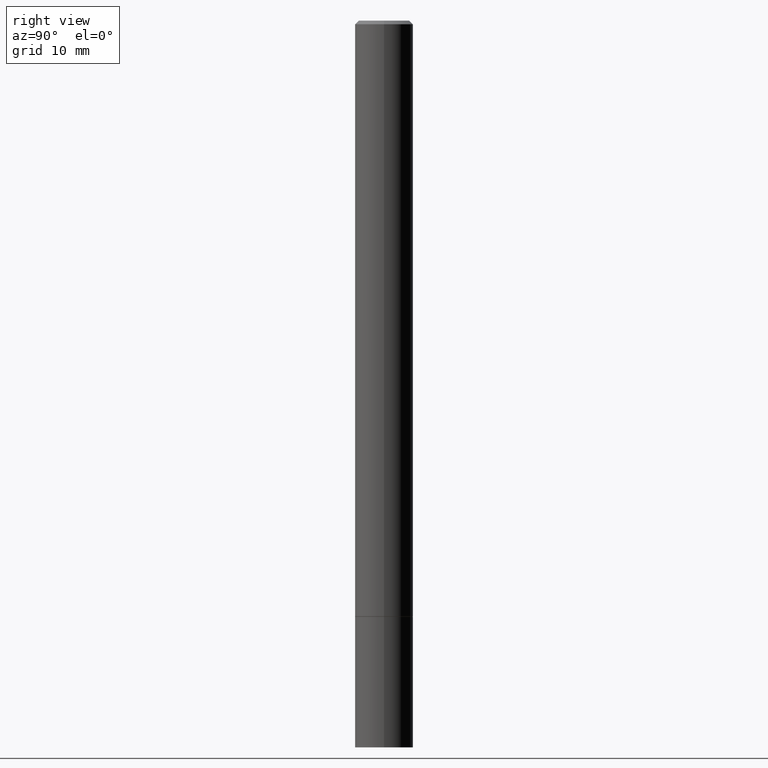
[diagram: clean part render]
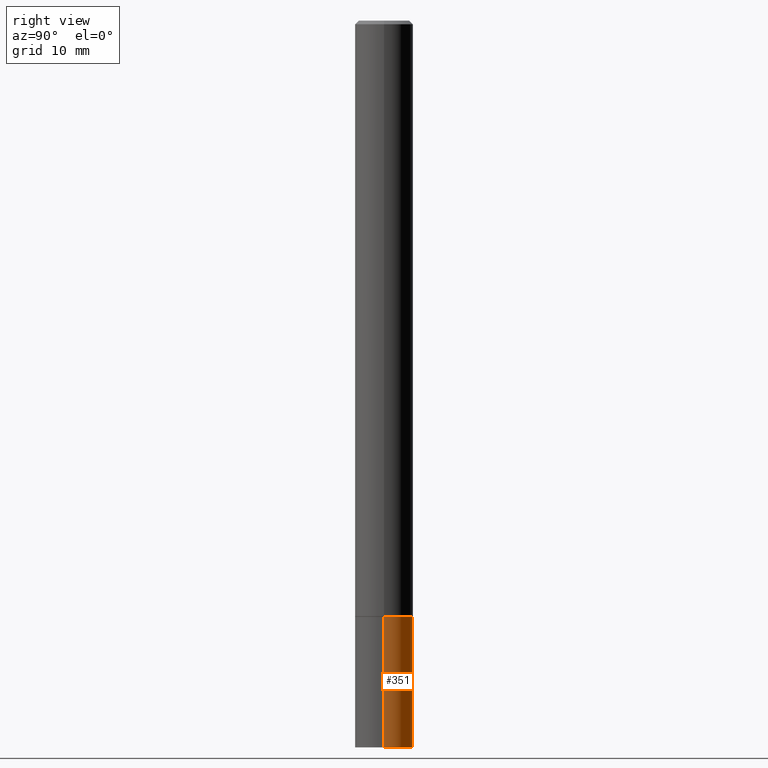
[diagram: same view with one face highlighted and labeled with its STEP entity id]
A machine part, right view. The second image highlights one B-rep face of the part: STEP entity #351.
In plain terms, the highlighted cylindrical surface (edge-blend (fillet) strip) has radius 4.0005 mm, axis along (-0, 0, 1).
Its self-contained STEP definition (entity closure, byte-faithful):
#9 = VECTOR ( 'NONE', #259, 39.37007874015748143 ) ;
#10 = VECTOR ( 'NONE', #180, 39.37007874015748143 ) ;
#12 = DIRECTION ( 'NONE',  ( 1.000000000000000000, -6.982962677686261977E-15, 0.000000000000000000 ) ) ;
#14 = CARTESIAN_POINT ( 'NONE',  ( 0.1575000000000000011, -1.237136582792291392E-14, -3.228299999999999947 ) ) ;
#26 = VERTEX_POINT ( 'NONE', #271 ) ;
#34 = ORIENTED_EDGE ( 'NONE', *, *, #260, .F. ) ;
#49 = DIRECTION ( 'NONE',  ( -2.445468806185136597E-29, 3.491481338843145583E-15, 1.000000000000000000 ) ) ;
#63 = CARTESIAN_POINT ( 'NONE',  ( 0.1575000000000000011, -1.099816621735586889E-15, 7.679978421878598033E-30 ) ) ;
#64 = DIRECTION ( 'NONE',  ( 1.000000000000000000, -6.982962677686261977E-15, 0.000000000000000000 ) ) ;
#69 = CARTESIAN_POINT ( 'NONE',  ( 0.1575000000000000011, -1.484577865276105011E-14, -3.937000000000000277 ) ) ;
#73 = CIRCLE ( 'NONE', #311, 0.1575000000000000011 ) ;
#87 = AXIS2_PLACEMENT_3D ( 'NONE', #104, #49, #326 ) ;
#104 = CARTESIAN_POINT ( 'NONE',  ( 0.000000000000000000, 0.000000000000000000, 0.000000000000000000 ) ) ;
#135 = CYLINDRICAL_SURFACE ( 'NONE', #87, 0.1575000000000000011 ) ;
#139 = EDGE_LOOP ( 'NONE', ( #187, #305, #34, #341 ) ) ;
#143 = EDGE_CURVE ( 'NONE', #26, #336, #182, .T. ) ;
#154 = CARTESIAN_POINT ( 'NONE',  ( 7.894706947007477118E-29, -1.127154920618732880E-14, -3.228299999999999947 ) ) ;
#164 = VERTEX_POINT ( 'NONE', #14 ) ;
#180 = DIRECTION ( 'NONE',  ( -2.445468806185136877E-29, 3.491481338843145188E-15, 1.000000000000000000 ) ) ;
#182 = LINE ( 'NONE', #256, #9 ) ;
#187 = ORIENTED_EDGE ( 'NONE', *, *, #229, .T. ) ;
#204 = CARTESIAN_POINT ( 'NONE',  ( 9.627810689950883669E-29, -1.374596203102546341E-14, -3.937000000000000277 ) ) ;
#225 = EDGE_CURVE ( 'NONE', #364, #164, #345, .T. ) ;
#229 = EDGE_CURVE ( 'NONE', #364, #26, #353, .T. ) ;
#241 = CARTESIAN_POINT ( 'NONE',  ( -0.1575000000000000011, -1.138965080978423772E-14, -3.228299999999999947 ) ) ;
#256 = CARTESIAN_POINT ( 'NONE',  ( -0.1575000000000000011, 1.119104808822157801E-15, -7.747322767151475583E-30 ) ) ;
#258 = DIRECTION ( 'NONE',  ( -2.445468806185136597E-29, 3.491481338843145583E-15, 1.000000000000000000 ) ) ;
#259 = DIRECTION ( 'NONE',  ( -2.445468806185136877E-29, 3.491481338843145188E-15, 1.000000000000000000 ) ) ;
#260 = EDGE_CURVE ( 'NONE', #164, #336, #73, .T. ) ;
#271 = CARTESIAN_POINT ( 'NONE',  ( -0.1575000000000000011, -1.138965080978423772E-14, -3.937000000000000277 ) ) ;
#286 = AXIS2_PLACEMENT_3D ( 'NONE', #204, #315, #64 ) ;
#298 = FACE_OUTER_BOUND ( 'NONE', #139, .T. ) ;
#305 = ORIENTED_EDGE ( 'NONE', *, *, #143, .T. ) ;
#311 = AXIS2_PLACEMENT_3D ( 'NONE', #154, #258, #12 ) ;
#315 = DIRECTION ( 'NONE',  ( -2.445468806185136597E-29, 3.491481338843145583E-15, 1.000000000000000000 ) ) ;
#326 = DIRECTION ( 'NONE',  ( 1.000000000000000000, -6.982962677686265922E-15, 4.876176775795935232E-29 ) ) ;
#336 = VERTEX_POINT ( 'NONE', #241 ) ;
#341 = ORIENTED_EDGE ( 'NONE', *, *, #225, .F. ) ;
#345 = LINE ( 'NONE', #63, #10 ) ;
#351 = ADVANCED_FACE ( 'NONE', ( #298 ), #135, .T. ) ;
#353 = CIRCLE ( 'NONE', #286, 0.1575000000000000011 ) ;
#364 = VERTEX_POINT ( 'NONE', #69 ) ;